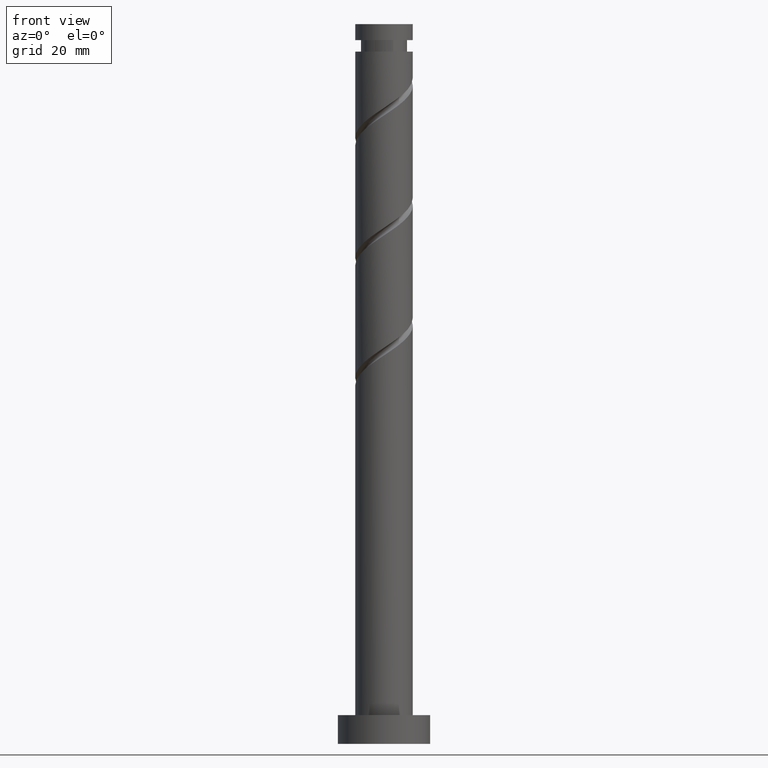
[diagram: clean part render]
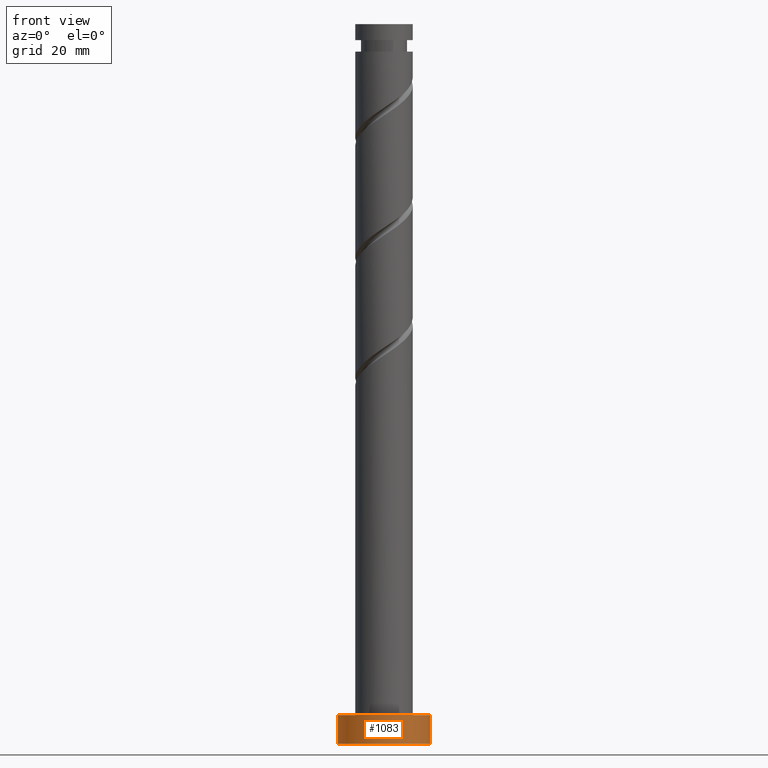
[diagram: same view with one face highlighted and labeled with its STEP entity id]
A machine part, front view. The second image highlights one B-rep face of the part: STEP entity #1083.
In plain terms, the highlighted cylindrical surface (partial cylindrical patch) has radius 8 mm, axis along (-0, -0, -1).
Its self-contained STEP definition (entity closure, byte-faithful):
#64 = VERTEX_POINT ( 'NONE', #1482 ) ;
#77 = ORIENTED_EDGE ( 'NONE', *, *, #486, .F. ) ;
#90 = CIRCLE ( 'NONE', #906, 8.000000000000000000 ) ;
#133 = CARTESIAN_POINT ( 'NONE',  ( 8.000000000000000000, 9.797174393178825657E-16, 5.000000000000000000 ) ) ;
#207 = ORIENTED_EDGE ( 'NONE', *, *, #944, .F. ) ;
#264 = CARTESIAN_POINT ( 'NONE',  ( -8.000000000000000000, 0.000000000000000000, 5.000000000000000000 ) ) ;
#266 = CYLINDRICAL_SURFACE ( 'NONE', #1085, 8.000000000000000000 ) ;
#326 = DIRECTION ( 'NONE',  ( 1.000000000000000000, 0.000000000000000000, 0.000000000000000000 ) ) ;
#362 = VECTOR ( 'NONE', #1569, 1000.000000000000000 ) ;
#369 = DIRECTION ( 'NONE',  ( -0.000000000000000000, -0.000000000000000000, -1.000000000000000000 ) ) ;
#388 = CARTESIAN_POINT ( 'NONE',  ( 8.000000000000000000, 9.797174393178825657E-16, 5.000000000000000000 ) ) ;
#392 = CIRCLE ( 'NONE', #1233, 8.000000000000000000 ) ;
#486 = EDGE_CURVE ( 'NONE', #1484, #922, #392, .T. ) ;
#488 = CARTESIAN_POINT ( 'NONE',  ( 0.000000000000000000, 0.000000000000000000, 0.000000000000000000 ) ) ;
#492 = CARTESIAN_POINT ( 'NONE',  ( 8.000000000000000000, 9.797174393178825657E-16, 0.000000000000000000 ) ) ;
#527 = DIRECTION ( 'NONE',  ( -0.000000000000000000, -0.000000000000000000, -1.000000000000000000 ) ) ;
#675 = ORIENTED_EDGE ( 'NONE', *, *, #1454, .T. ) ;
#679 = CARTESIAN_POINT ( 'NONE',  ( 0.000000000000000000, 0.000000000000000000, 5.000000000000000000 ) ) ;
#748 = CARTESIAN_POINT ( 'NONE',  ( 0.000000000000000000, 0.000000000000000000, 5.000000000000000000 ) ) ;
#760 = DIRECTION ( 'NONE',  ( -1.000000000000000000, 0.000000000000000000, 0.000000000000000000 ) ) ;
#870 = DIRECTION ( 'NONE',  ( 0.000000000000000000, 0.000000000000000000, 1.000000000000000000 ) ) ;
#883 = CARTESIAN_POINT ( 'NONE',  ( -8.000000000000000000, 0.000000000000000000, 5.000000000000000000 ) ) ;
#906 = AXIS2_PLACEMENT_3D ( 'NONE', #488, #870, #988 ) ;
#922 = VERTEX_POINT ( 'NONE', #133 ) ;
#944 = EDGE_CURVE ( 'NONE', #922, #1496, #1356, .T. ) ;
#987 = EDGE_CURVE ( 'NONE', #64, #1496, #90, .T. ) ;
#988 = DIRECTION ( 'NONE',  ( 1.000000000000000000, 0.000000000000000000, 0.000000000000000000 ) ) ;
#1005 = FACE_OUTER_BOUND ( 'NONE', #1188, .T. ) ;
#1083 = ADVANCED_FACE ( 'NONE', ( #1005 ), #266, .T. ) ;
#1085 = AXIS2_PLACEMENT_3D ( 'NONE', #748, #369, #760 ) ;
#1124 = LINE ( 'NONE', #883, #362 ) ;
#1188 = EDGE_LOOP ( 'NONE', ( #207, #77, #675, #1424 ) ) ;
#1233 = AXIS2_PLACEMENT_3D ( 'NONE', #679, #1434, #326 ) ;
#1356 = LINE ( 'NONE', #388, #1458 ) ;
#1424 = ORIENTED_EDGE ( 'NONE', *, *, #987, .T. ) ;
#1434 = DIRECTION ( 'NONE',  ( 0.000000000000000000, 0.000000000000000000, 1.000000000000000000 ) ) ;
#1454 = EDGE_CURVE ( 'NONE', #1484, #64, #1124, .T. ) ;
#1458 = VECTOR ( 'NONE', #527, 1000.000000000000000 ) ;
#1482 = CARTESIAN_POINT ( 'NONE',  ( -8.000000000000000000, 0.000000000000000000, 0.000000000000000000 ) ) ;
#1484 = VERTEX_POINT ( 'NONE', #264 ) ;
#1496 = VERTEX_POINT ( 'NONE', #492 ) ;
#1569 = DIRECTION ( 'NONE',  ( -0.000000000000000000, -0.000000000000000000, -1.000000000000000000 ) ) ;